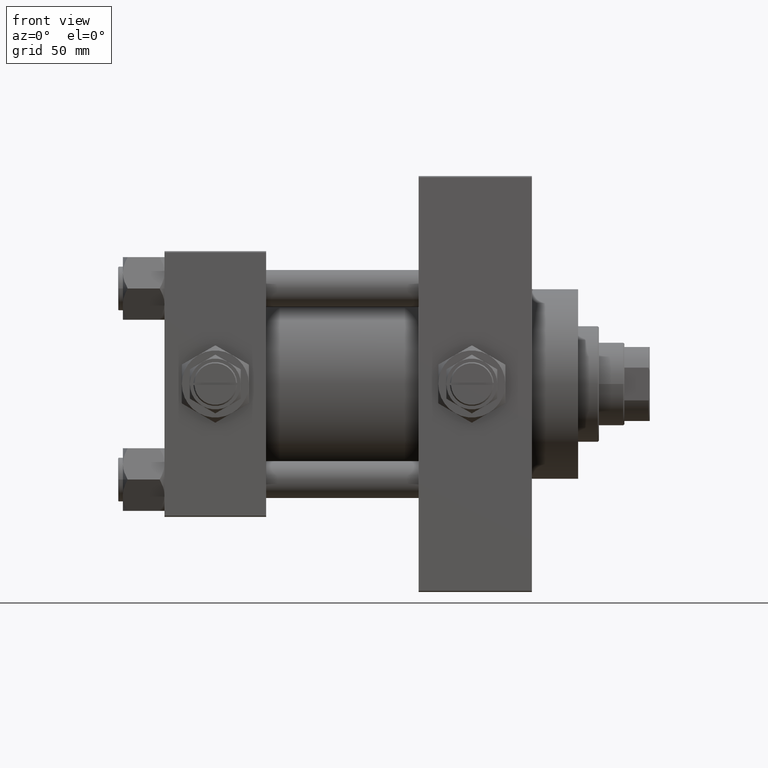
[diagram: clean part render]
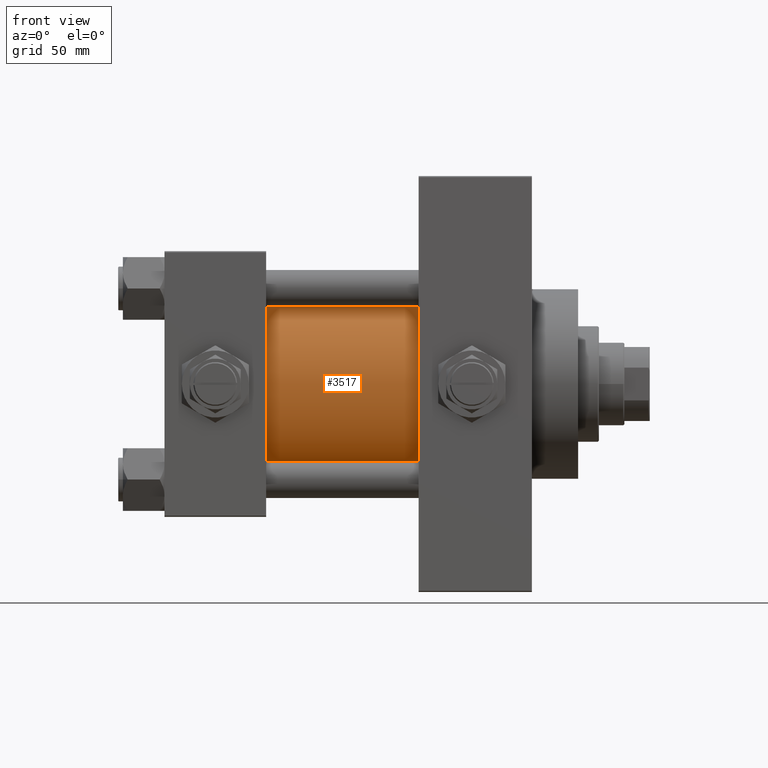
[diagram: same view with one face highlighted and labeled with its STEP entity id]
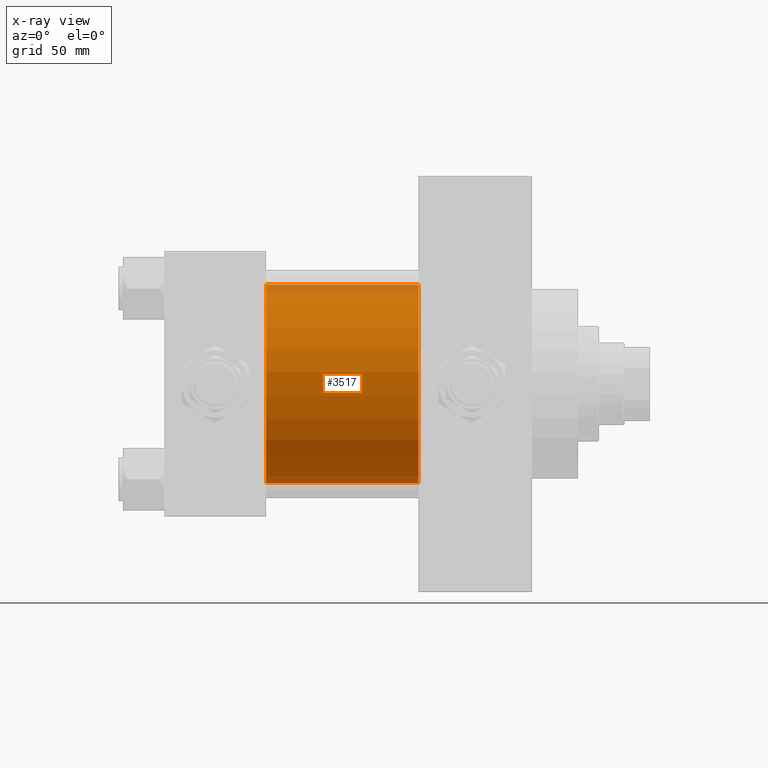
[diagram: x-ray of the same camera — body ghosted, the highlighted face saturated]
A machine part, front view. The second image highlights one B-rep face of the part: STEP entity #3517.
The next image is the same camera in x-ray: the body ghosted, the highlighted face saturated — about 7% of this face is hidden behind the body in this view.
In plain terms, the highlighted cylindrical surface (partial cylindrical patch) has radius 43 mm, axis along (-1, -0, -0).
Its self-contained STEP definition (entity closure, byte-faithful):
#2939 = CARTESIAN_POINT ( 'NONE',  ( 110.0000000000000000, 2.663896022368408223E-15, -43.00000000000000000 ) ) ;
#3517 = ADVANCED_FACE ( 'NONE', ( #12137 ), #39090, .T. ) ;
#4618 = CARTESIAN_POINT ( 'NONE',  ( 110.0000000000000000, -2.602085213965210642E-15, 0.000000000000000000 ) ) ;
#7981 = CARTESIAN_POINT ( 'NONE',  ( 110.0000000000000000, -2.602085213965210642E-15, 43.00000000000000000 ) ) ;
#8202 = CARTESIAN_POINT ( 'NONE',  ( 110.0000000000000000, -2.602085213965210642E-15, 43.00000000000000000 ) ) ;
#8839 = CIRCLE ( 'NONE', #21695, 43.00000000000000000 ) ;
#11631 = CARTESIAN_POINT ( 'NONE',  ( 44.00000000000000000, -2.602085213965210642E-15, 43.00000000000000000 ) ) ;
#12137 = FACE_OUTER_BOUND ( 'NONE', #14393, .T. ) ;
#12512 = CIRCLE ( 'NONE', #40651, 43.00000000000000000 ) ;
#14201 = ORIENTED_EDGE ( 'NONE', *, *, #28973, .T. ) ;
#14393 = EDGE_LOOP ( 'NONE', ( #45222, #23828, #48653, #14201 ) ) ;
#14714 = DIRECTION ( 'NONE',  ( 1.000000000000000000, 0.000000000000000000, 0.000000000000000000 ) ) ;
#17604 = EDGE_CURVE ( 'NONE', #27553, #47262, #27118, .T. ) ;
#20067 = DIRECTION ( 'NONE',  ( -1.000000000000000000, -0.000000000000000000, -0.000000000000000000 ) ) ;
#20975 = EDGE_CURVE ( 'NONE', #27553, #31520, #8839, .T. ) ;
#21695 = AXIS2_PLACEMENT_3D ( 'NONE', #30835, #14714, #46441 ) ;
#23239 = DIRECTION ( 'NONE',  ( -1.000000000000000000, -0.000000000000000000, -0.000000000000000000 ) ) ;
#23526 = EDGE_CURVE ( 'NONE', #31520, #35803, #29885, .T. ) ;
#23828 = ORIENTED_EDGE ( 'NONE', *, *, #20975, .F. ) ;
#26260 = AXIS2_PLACEMENT_3D ( 'NONE', #4618, #23239, #35069 ) ;
#27118 = LINE ( 'NONE', #7981, #41996 ) ;
#27553 = VERTEX_POINT ( 'NONE', #8202 ) ;
#28973 = EDGE_CURVE ( 'NONE', #47262, #35803, #12512, .T. ) ;
#29885 = LINE ( 'NONE', #2939, #44608 ) ;
#30835 = CARTESIAN_POINT ( 'NONE',  ( 110.0000000000000000, -2.602085213965210642E-15, 0.000000000000000000 ) ) ;
#31439 = CARTESIAN_POINT ( 'NONE',  ( 110.0000000000000000, 2.663896022368408223E-15, -43.00000000000000000 ) ) ;
#31520 = VERTEX_POINT ( 'NONE', #31439 ) ;
#32912 = DIRECTION ( 'NONE',  ( -1.000000000000000000, -0.000000000000000000, -0.000000000000000000 ) ) ;
#35069 = DIRECTION ( 'NONE',  ( 0.000000000000000000, 0.000000000000000000, 1.000000000000000000 ) ) ;
#35610 = CARTESIAN_POINT ( 'NONE',  ( 44.00000000000000000, -2.602085213965210642E-15, 0.000000000000000000 ) ) ;
#35803 = VERTEX_POINT ( 'NONE', #47683 ) ;
#36108 = DIRECTION ( 'NONE',  ( 1.000000000000000000, -0.000000000000000000, 0.000000000000000000 ) ) ;
#39090 = CYLINDRICAL_SURFACE ( 'NONE', #26260, 43.00000000000000000 ) ;
#39392 = DIRECTION ( 'NONE',  ( 0.000000000000000000, 0.000000000000000000, 1.000000000000000000 ) ) ;
#40651 = AXIS2_PLACEMENT_3D ( 'NONE', #35610, #36108, #39392 ) ;
#41996 = VECTOR ( 'NONE', #20067, 1000.000000000000000 ) ;
#44608 = VECTOR ( 'NONE', #32912, 1000.000000000000000 ) ;
#45222 = ORIENTED_EDGE ( 'NONE', *, *, #23526, .F. ) ;
#46441 = DIRECTION ( 'NONE',  ( 0.000000000000000000, 0.000000000000000000, -1.000000000000000000 ) ) ;
#47262 = VERTEX_POINT ( 'NONE', #11631 ) ;
#47683 = CARTESIAN_POINT ( 'NONE',  ( 44.00000000000000000, 2.663896022368408223E-15, -43.00000000000000000 ) ) ;
#48653 = ORIENTED_EDGE ( 'NONE', *, *, #17604, .T. ) ;